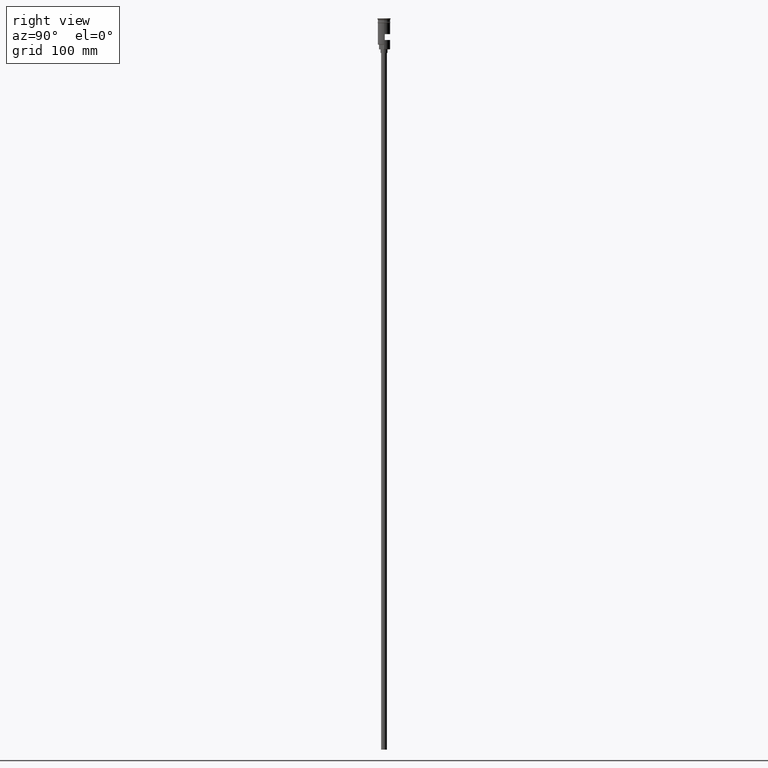
[diagram: clean part render]
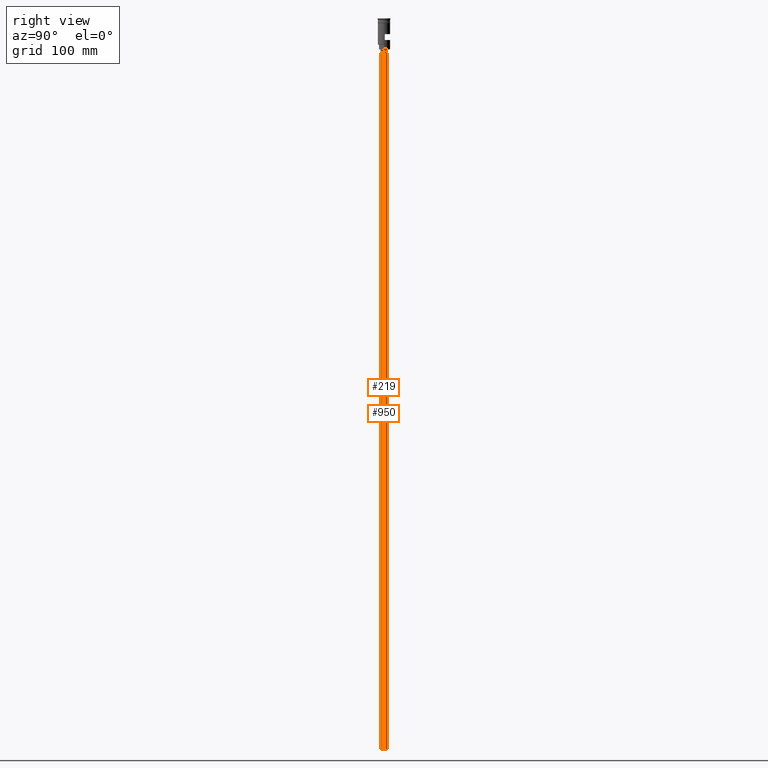
[diagram: same view with one multi-face feature highlighted, each face labeled with its STEP entity id]
A machine part, right view. The highlighted faces form ONE feature: a constant-radius fillet chain: 2 tangent blend faces with common blend radius 2.5 mm. The faces share edges in the B-rep.
Their STEP definitions:
[1] entity #219 (Cylinder):
#22 = CARTESIAN_POINT ( 'NONE',  ( -2.500000000000000000, 3.061616997868383141E-16, -626.5000000000000000 ) ) ;
#72 = CARTESIAN_POINT ( 'NONE',  ( 0.000000000000000000, 0.000000000000000000, -29.50000000000000000 ) ) ;
#140 = DIRECTION ( 'NONE',  ( -0.000000000000000000, -0.000000000000000000, 1.000000000000000000 ) ) ;
#191 = CIRCLE ( 'NONE', #1114, 2.500000000000000000 ) ;
#196 = DIRECTION ( 'NONE',  ( -1.000000000000000000, 0.000000000000000000, 0.000000000000000000 ) ) ;
#219 = ADVANCED_FACE ( 'NONE', ( #796 ), #272, .T. ) ;
#222 = EDGE_CURVE ( 'NONE', #1470, #653, #191, .T. ) ;
#262 = VERTEX_POINT ( 'NONE', #836 ) ;
#266 = AXIS2_PLACEMENT_3D ( 'NONE', #414, #1293, #1541 ) ;
#272 = CYLINDRICAL_SURFACE ( 'NONE', #266, 2.500000000000000000 ) ;
#319 = EDGE_LOOP ( 'NONE', ( #1401, #766, #1488, #1281 ) ) ;
#347 = CARTESIAN_POINT ( 'NONE',  ( 2.500000000000000000, 0.000000000000000000, -626.5000000000000000 ) ) ;
#370 = EDGE_CURVE ( 'NONE', #262, #1470, #1408, .T. ) ;
#391 = AXIS2_PLACEMENT_3D ( 'NONE', #1542, #797, #196 ) ;
#414 = CARTESIAN_POINT ( 'NONE',  ( 0.000000000000000000, 0.000000000000000000, -626.5000000000000000 ) ) ;
#421 = DIRECTION ( 'NONE',  ( 0.000000000000000000, 0.000000000000000000, -1.000000000000000000 ) ) ;
#463 = CARTESIAN_POINT ( 'NONE',  ( 2.500000000000000000, 0.000000000000000000, -626.5000000000000000 ) ) ;
#475 = EDGE_CURVE ( 'NONE', #262, #1337, #734, .T. ) ;
#556 = EDGE_CURVE ( 'NONE', #1337, #653, #1227, .T. ) ;
#600 = VECTOR ( 'NONE', #954, 1000.000000000000000 ) ;
#653 = VERTEX_POINT ( 'NONE', #870 ) ;
#734 = CIRCLE ( 'NONE', #391, 2.500000000000000000 ) ;
#766 = ORIENTED_EDGE ( 'NONE', *, *, #370, .T. ) ;
#796 = FACE_OUTER_BOUND ( 'NONE', #319, .T. ) ;
#797 = DIRECTION ( 'NONE',  ( 0.000000000000000000, 0.000000000000000000, -1.000000000000000000 ) ) ;
#836 = CARTESIAN_POINT ( 'NONE',  ( -2.500000000000000000, 3.061616997868383141E-16, -626.5000000000000000 ) ) ;
#870 = CARTESIAN_POINT ( 'NONE',  ( 2.500000000000000000, 0.000000000000000000, -29.50000000000000000 ) ) ;
#954 = DIRECTION ( 'NONE',  ( -0.000000000000000000, -0.000000000000000000, 1.000000000000000000 ) ) ;
#1114 = AXIS2_PLACEMENT_3D ( 'NONE', #72, #421, #1273 ) ;
#1178 = CARTESIAN_POINT ( 'NONE',  ( -2.500000000000000000, 3.061616997868383141E-16, -29.50000000000000000 ) ) ;
#1188 = VECTOR ( 'NONE', #140, 1000.000000000000000 ) ;
#1227 = LINE ( 'NONE', #463, #600 ) ;
#1273 = DIRECTION ( 'NONE',  ( -1.000000000000000000, 0.000000000000000000, 0.000000000000000000 ) ) ;
#1281 = ORIENTED_EDGE ( 'NONE', *, *, #556, .F. ) ;
#1293 = DIRECTION ( 'NONE',  ( -0.000000000000000000, -0.000000000000000000, 1.000000000000000000 ) ) ;
#1337 = VERTEX_POINT ( 'NONE', #347 ) ;
#1401 = ORIENTED_EDGE ( 'NONE', *, *, #475, .F. ) ;
#1408 = LINE ( 'NONE', #22, #1188 ) ;
#1470 = VERTEX_POINT ( 'NONE', #1178 ) ;
#1488 = ORIENTED_EDGE ( 'NONE', *, *, #222, .T. ) ;
#1541 = DIRECTION ( 'NONE',  ( 1.000000000000000000, 0.000000000000000000, 0.000000000000000000 ) ) ;
#1542 = CARTESIAN_POINT ( 'NONE',  ( 0.000000000000000000, 0.000000000000000000, -626.5000000000000000 ) ) ;
[2] entity #950 (Cylinder):
#22 = CARTESIAN_POINT ( 'NONE',  ( -2.500000000000000000, 3.061616997868383141E-16, -626.5000000000000000 ) ) ;
#140 = DIRECTION ( 'NONE',  ( -0.000000000000000000, -0.000000000000000000, 1.000000000000000000 ) ) ;
#151 = CARTESIAN_POINT ( 'NONE',  ( 0.000000000000000000, 0.000000000000000000, -626.5000000000000000 ) ) ;
#179 = EDGE_CURVE ( 'NONE', #1337, #262, #549, .T. ) ;
#212 = ORIENTED_EDGE ( 'NONE', *, *, #582, .T. ) ;
#249 = ORIENTED_EDGE ( 'NONE', *, *, #179, .F. ) ;
#262 = VERTEX_POINT ( 'NONE', #836 ) ;
#317 = CIRCLE ( 'NONE', #476, 2.500000000000000000 ) ;
#347 = CARTESIAN_POINT ( 'NONE',  ( 2.500000000000000000, 0.000000000000000000, -626.5000000000000000 ) ) ;
#370 = EDGE_CURVE ( 'NONE', #262, #1470, #1408, .T. ) ;
#462 = DIRECTION ( 'NONE',  ( 0.000000000000000000, 0.000000000000000000, -1.000000000000000000 ) ) ;
#463 = CARTESIAN_POINT ( 'NONE',  ( 2.500000000000000000, 0.000000000000000000, -626.5000000000000000 ) ) ;
#476 = AXIS2_PLACEMENT_3D ( 'NONE', #896, #462, #831 ) ;
#540 = DIRECTION ( 'NONE',  ( -1.000000000000000000, 0.000000000000000000, 0.000000000000000000 ) ) ;
#549 = CIRCLE ( 'NONE', #787, 2.500000000000000000 ) ;
#556 = EDGE_CURVE ( 'NONE', #1337, #653, #1227, .T. ) ;
#582 = EDGE_CURVE ( 'NONE', #653, #1470, #317, .T. ) ;
#592 = CYLINDRICAL_SURFACE ( 'NONE', #1276, 2.500000000000000000 ) ;
#600 = VECTOR ( 'NONE', #954, 1000.000000000000000 ) ;
#653 = VERTEX_POINT ( 'NONE', #870 ) ;
#720 = DIRECTION ( 'NONE',  ( -0.000000000000000000, -0.000000000000000000, 1.000000000000000000 ) ) ;
#775 = DIRECTION ( 'NONE',  ( 0.000000000000000000, 0.000000000000000000, -1.000000000000000000 ) ) ;
#787 = AXIS2_PLACEMENT_3D ( 'NONE', #151, #775, #540 ) ;
#831 = DIRECTION ( 'NONE',  ( -1.000000000000000000, 0.000000000000000000, 0.000000000000000000 ) ) ;
#836 = CARTESIAN_POINT ( 'NONE',  ( -2.500000000000000000, 3.061616997868383141E-16, -626.5000000000000000 ) ) ;
#870 = CARTESIAN_POINT ( 'NONE',  ( 2.500000000000000000, 0.000000000000000000, -29.50000000000000000 ) ) ;
#896 = CARTESIAN_POINT ( 'NONE',  ( 0.000000000000000000, 0.000000000000000000, -29.50000000000000000 ) ) ;
#950 = ADVANCED_FACE ( 'NONE', ( #1583 ), #592, .T. ) ;
#954 = DIRECTION ( 'NONE',  ( -0.000000000000000000, -0.000000000000000000, 1.000000000000000000 ) ) ;
#1124 = ORIENTED_EDGE ( 'NONE', *, *, #556, .T. ) ;
#1178 = CARTESIAN_POINT ( 'NONE',  ( -2.500000000000000000, 3.061616997868383141E-16, -29.50000000000000000 ) ) ;
#1188 = VECTOR ( 'NONE', #140, 1000.000000000000000 ) ;
#1227 = LINE ( 'NONE', #463, #600 ) ;
#1276 = AXIS2_PLACEMENT_3D ( 'NONE', #1341, #720, #1474 ) ;
#1337 = VERTEX_POINT ( 'NONE', #347 ) ;
#1341 = CARTESIAN_POINT ( 'NONE',  ( 0.000000000000000000, 0.000000000000000000, -626.5000000000000000 ) ) ;
#1374 = ORIENTED_EDGE ( 'NONE', *, *, #370, .F. ) ;
#1399 = EDGE_LOOP ( 'NONE', ( #1374, #249, #1124, #212 ) ) ;
#1408 = LINE ( 'NONE', #22, #1188 ) ;
#1470 = VERTEX_POINT ( 'NONE', #1178 ) ;
#1474 = DIRECTION ( 'NONE',  ( 1.000000000000000000, 0.000000000000000000, 0.000000000000000000 ) ) ;
#1583 = FACE_OUTER_BOUND ( 'NONE', #1399, .T. ) ;